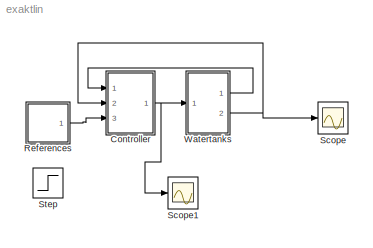
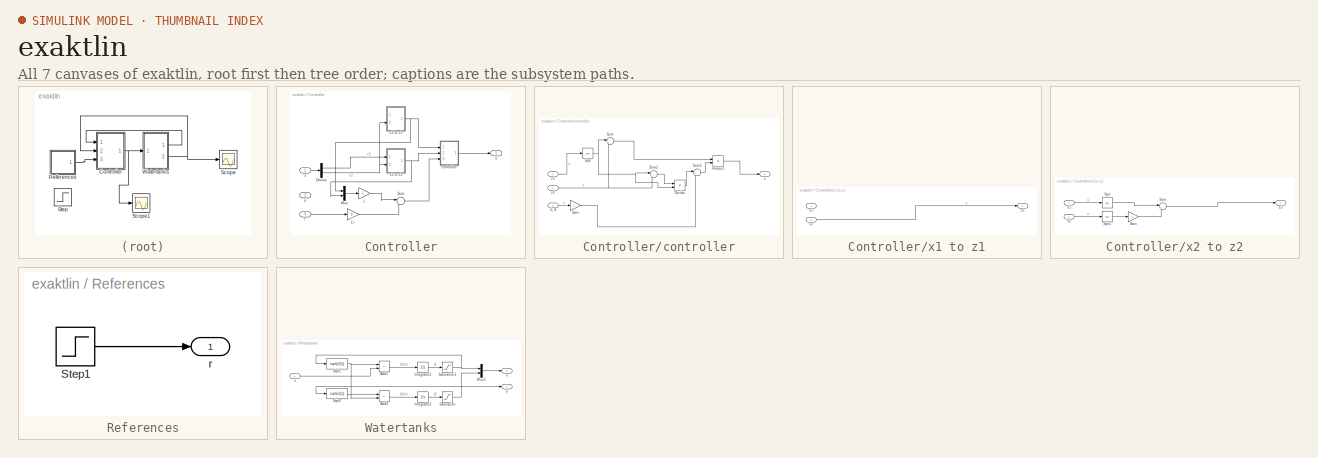
[diagram: thumbnail index - all 7 canvases of the model, root first then tree order]
MODEL exaktlin
KIND model
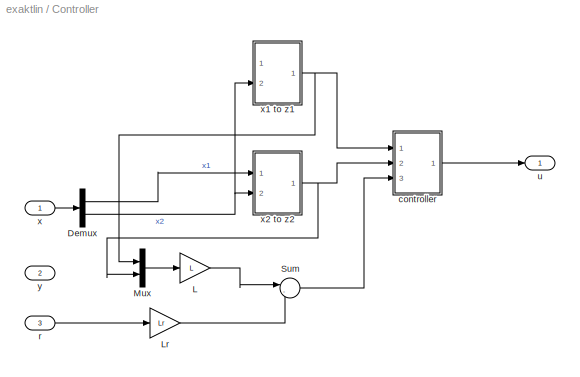
BLOCK [SubSystem] Controller
  Ports = [3, 1]
  RequestExecContextInheritance = off
  SID = 1
BLOCK [Demux] Controller/Demux
  Outputs = 2
  Ports = [1, 2]
  SID = 5
BLOCK [Gain] Controller/L
  Gain = L
  Multiplication = Matrix(K*u)
  SID = 75
BLOCK [Gain] Controller/Lr
  Gain = Lr
  Multiplication = Matrix(K*u)
  SID = 76
BLOCK [Mux] Controller/Mux
  DisplayOption = bar
  Inputs = 2
  Ports = [2, 1]
  SID = 77
BLOCK [Sum] Controller/Sum
  Inputs = |-+
  Ports = [2, 1]
  SID = 78
BLOCK [SubSystem] Controller/controller
  Ports = [3, 1]
  RequestExecContextInheritance = off
  SID = 59
BLOCK [Product] Controller/controller/Divide
  Inputs = */
  Ports = [2, 1]
  SID = 81
BLOCK [Gain] Controller/controller/Gain
  Gain = 2
  SID = 69
BLOCK [Product] Controller/controller/Product
  Ports = [2, 1]
  SID = 66
BLOCK [Sqrt] Controller/controller/Sqrt
  SID = 64
BLOCK [Sum] Controller/controller/Sum
  Inputs = |++
  Ports = [2, 1]
  SID = 63
BLOCK [Sum] Controller/controller/Sum1
  Inputs = |++
  Ports = [2, 1]
  SID = 70
BLOCK [Sum] Controller/controller/Sum2
  Inputs = |++
  Ports = [2, 1]
  SID = 71
BLOCK [Inport] Controller/controller/U_S
  Port = 3
  SID = 67
BLOCK [Outport] Controller/controller/u
  SID = 62
BLOCK [Inport] Controller/controller/z1
  SID = 60
BLOCK [Inport] Controller/controller/z2
  Port = 2
  SID = 61
BLOCK [Inport] Controller/r
  Port = 3
  SID = 4
BLOCK [Outport] Controller/u
  SID = 14
BLOCK [Inport] Controller/x
  SID = 2
BLOCK [SubSystem] Controller/x1 to z1
  Ports = [2, 1]
  RequestExecContextInheritance = off
  SID = 41
BLOCK [Inport] Controller/x1 to z1/x1
  SID = 43
BLOCK [Inport] Controller/x1 to z1/x2
  Port = 2
  SID = 48
BLOCK [Outport] Controller/x1 to z1/z1
  SID = 47
BLOCK [SubSystem] Controller/x2 to z2
  Ports = [2, 1]
  RequestExecContextInheritance = off
  SID = 51
BLOCK [Gain] Controller/x2 to z2/Gain
  Gain = -1
  SID = 56
BLOCK [Sqrt] Controller/x2 to z2/Sqrt
  SID = 55
BLOCK [Sqrt] Controller/x2 to z2/Sqrt1
  SID = 57
BLOCK [Sum] Controller/x2 to z2/Sum
  Inputs = |++
  Ports = [2, 1]
  SID = 58
BLOCK [Inport] Controller/x2 to z2/x1
  SID = 52
BLOCK [Inport] Controller/x2 to z2/x2
  Port = 2
  SID = 53
BLOCK [Outport] Controller/x2 to z2/z2
  SID = 54
BLOCK [Inport] Controller/y
  Port = 2
  SID = 3
BLOCK [SubSystem] References
  Ports = [0, 1]
  RequestExecContextInheritance = off
  SID = 15
BLOCK [Step] References/Step1
  After = r0+r1
  Before = r0
  SID = 18
  SampleTime = 0
  Time = t1
BLOCK [Outport] References/r
  SID = 19
BLOCK [Scope] Scope
  Floating = off
  NumInputPorts = 1
  Ports = [1]
  SID = 20
  ScopeSpecificationString = Simulink.scopes.TimeScopeBlockCfg('CurrentConfiguration', extmgr.ConfigurationSet(extmgr.Configuration('Core','General UI',true),extmgr.Configuration('Core','Source UI',true),extmgr.Configuration('Sources','WiredSimulink',true,'DataLoggingSaveFormat','StructureWithTime','DataLoggingLimitDataPoints',true,'DataLoggingDecimation','1','DataLoggingDecimateData',true),extmgr.Configuration('Visuals','Tim...<+1645ch>
BLOCK [Scope] Scope1
  Floating = off
  NumInputPorts = 1
  Ports = [1]
  SID = 80
  ScopeSpecificationString = Simulink.scopes.TimeScopeBlockCfg('CurrentConfiguration', extmgr.ConfigurationSet(extmgr.Configuration('Core','General UI',true),extmgr.Configuration('Core','Source UI',true),extmgr.Configuration('Sources','WiredSimulink',true,'DataLoggingVariableName','ScopeData1'),extmgr.Configuration('Visuals','Time Domain',true,'SerializedDisplays',{struct('MinYLimReal','-118.23209','MaxYLimReal','13.1369','YL...<+1408ch>
BLOCK [Step] Step
  SID = 79
  SampleTime = 0
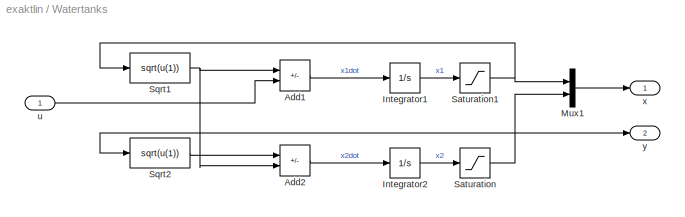
BLOCK [SubSystem] Watertanks
  Ports = [1, 2]
  RequestExecContextInheritance = off
  SID = 21
BLOCK [Sum] Watertanks/Add1
  IconShape = rectangular
  Inputs = -+
  Ports = [2, 1]
  SID = 24
BLOCK [Sum] Watertanks/Add2
  IconShape = rectangular
  Inputs = -+
  Ports = [2, 1]
  SID = 25
BLOCK [Integrator] Watertanks/Integrator1
  InitialCondition = 5
  Ports = [1, 1]
  SID = 29
BLOCK [Integrator] Watertanks/Integrator2
  InitialCondition = 5
  Ports = [1, 1]
  SID = 30
BLOCK [Mux] Watertanks/Mux1
  DisplayOption = bar
  Inputs = 2
  Ports = [2, 1]
  SID = 32
BLOCK [Saturate] Watertanks/Saturation
  LowerLimit = 0
  SID = 33
  UpperLimit = 100
BLOCK [Saturate] Watertanks/Saturation1
  LowerLimit = 0
  SID = 34
  UpperLimit = 100
BLOCK [Fcn] Watertanks/Sqrt1
  Expr = sqrt(u(1))
  SID = 37
BLOCK [Fcn] Watertanks/Sqrt2
  Expr = sqrt(u(1))
  SID = 38
BLOCK [Inport] Watertanks/u
  SID = 22
BLOCK [Outport] Watertanks/x
  SID = 39
BLOCK [Outport] Watertanks/y
  Port = 2
  SID = 40
LINE Controller/Demux:1 -> Controller/x2 to z2:1
NET Controller/Demux:2 -> Controller/x1 to z1:2, Controller/x2 to z2:2
LINE Controller/L:1 -> Controller/Sum:1
LINE Controller/Lr:1 -> Controller/Sum:2
LINE Controller/Mux:1 -> Controller/L:1
LINE Controller/Sum:1 -> Controller/controller:3
LINE Controller/controller/Divide:1 -> Controller/controller/Sum1:1
LINE Controller/controller/Gain:1 -> Controller/controller/Sum1:2
LINE Controller/controller/Product:1 -> Controller/controller/u:1
NET Controller/controller/Sqrt:1 -> Controller/controller/Divide:2, Controller/controller/Sum2:1, Controller/controller/Sum:1
LINE Controller/controller/Sum1:1 -> Controller/controller/Product:2
LINE Controller/controller/Sum2:1 -> Controller/controller/Divide:1
LINE Controller/controller/Sum:1 -> Controller/controller/Product:1
LINE Controller/controller/U_S:1 -> Controller/controller/Gain:1
LINE Controller/controller/z1:1 -> Controller/controller/Sqrt:1
NET Controller/controller/z2:1 -> Controller/controller/Sum2:2, Controller/controller/Sum:2
LINE Controller/controller:1 -> Controller/u:1
LINE Controller/r:1 -> Controller/Lr:1
LINE Controller/x1 to z1/x2:1 -> Controller/x1 to z1/z1:1
NET Controller/x1 to z1:1 -> Controller/Mux:1, Controller/controller:1
LINE Controller/x2 to z2/Gain:1 -> Controller/x2 to z2/Sum:2
LINE Controller/x2 to z2/Sqrt1:1 -> Controller/x2 to z2/Gain:1
LINE Controller/x2 to z2/Sqrt:1 -> Controller/x2 to z2/Sum:1
LINE Controller/x2 to z2/Sum:1 -> Controller/x2 to z2/z2:1
LINE Controller/x2 to z2/x1:1 -> Controller/x2 to z2/Sqrt:1
LINE Controller/x2 to z2/x2:1 -> Controller/x2 to z2/Sqrt1:1
NET Controller/x2 to z2:1 -> Controller/Mux:2, Controller/controller:2
LINE Controller/x:1 -> Controller/Demux:1
NET Controller:1 -> Scope1:1, Watertanks:1
LINE References/Step1:1 -> References/r:1
LINE References:1 -> Controller:3
LINE Watertanks/Add1:1 -> Watertanks/Integrator1:1
LINE Watertanks/Add2:1 -> Watertanks/Integrator2:1
LINE Watertanks/Integrator1:1 -> Watertanks/Saturation1:1
LINE Watertanks/Integrator2:1 -> Watertanks/Saturation:1
LINE Watertanks/Mux1:1 -> Watertanks/x:1
NET Watertanks/Saturation1:1 -> Watertanks/Mux1:1, Watertanks/Sqrt1:1
NET Watertanks/Saturation:1 -> Watertanks/Mux1:2, Watertanks/Sqrt2:1, Watertanks/y:1
NET Watertanks/Sqrt1:1 -> Watertanks/Add1:1, Watertanks/Add2:2
LINE Watertanks/Sqrt2:1 -> Watertanks/Add2:1
LINE Watertanks/u:1 -> Watertanks/Add1:2
LINE Watertanks:1 -> Controller:1
NET Watertanks:2 -> Controller:2, Scope:1
note: NET lines group one-source signal fan-out (src -> all destinations, sorted); 1:1 wires keep LINE
